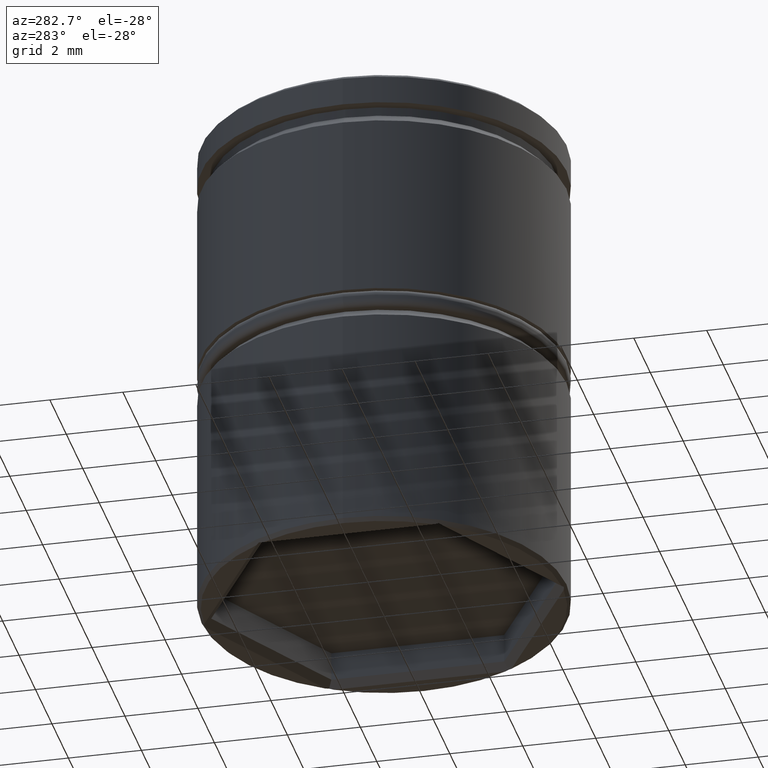
[diagram: clean part render]
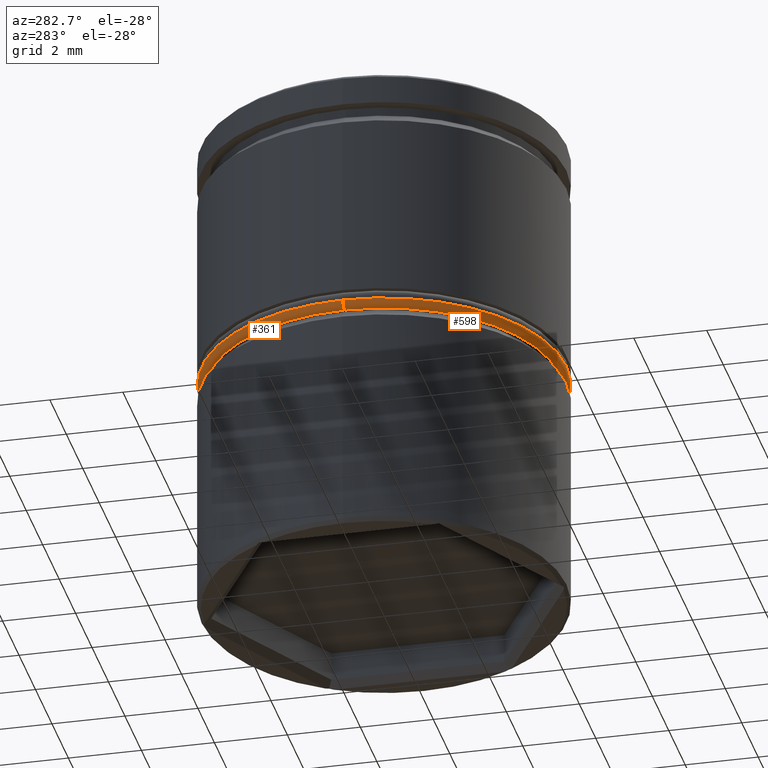
[diagram: same view with one multi-face feature highlighted, each face labeled with its STEP entity id]
A machine part, auxiliary view. The highlighted faces form ONE feature: a constant-radius fillet chain: 2 tangent blend faces with common blend radius 0.2 mm. The faces share edges in the B-rep.
Their STEP definitions:
[1] entity #598 (Torus):
#38 = EDGE_LOOP ( 'NONE', ( #761, #168, #1112, #285 ) ) ;
#45 = CARTESIAN_POINT ( 'NONE',  ( -4.800000000000000711, 5.878304635907295197E-16, -6.800000000000000711 ) ) ;
#68 = AXIS2_PLACEMENT_3D ( 'NONE', #776, #1208, #1044 ) ;
#86 = CARTESIAN_POINT ( 'NONE',  ( 0.000000000000000000, 0.000000000000000000, -6.999999999999999112 ) ) ;
#143 = DIRECTION ( 'NONE',  ( 1.224646799147353207E-16, 1.000000000000000000, -0.000000000000000000 ) ) ;
#168 = ORIENTED_EDGE ( 'NONE', *, *, #763, .F. ) ;
#285 = ORIENTED_EDGE ( 'NONE', *, *, #1292, .F. ) ;
#297 = DIRECTION ( 'NONE',  ( -0.000000000000000000, -0.000000000000000000, -1.000000000000000000 ) ) ;
#300 = CARTESIAN_POINT ( 'NONE',  ( 0.000000000000000000, 0.000000000000000000, -6.800000000000000711 ) ) ;
#311 = CIRCLE ( 'NONE', #1052, 5.000000000000000000 ) ;
#384 = VERTEX_POINT ( 'NONE', #1187 ) ;
#442 = DIRECTION ( 'NONE',  ( 0.000000000000000000, 0.000000000000000000, 1.000000000000000000 ) ) ;
#458 = VERTEX_POINT ( 'NONE', #1109 ) ;
#474 = CIRCLE ( 'NONE', #1231, 0.1999999999999996503 ) ;
#520 = DIRECTION ( 'NONE',  ( 1.000000000000000000, 0.000000000000000000, 0.000000000000000000 ) ) ;
#598 = ADVANCED_FACE ( 'NONE', ( #888 ), #939, .T. ) ;
#633 = EDGE_CURVE ( 'NONE', #384, #1314, #474, .T. ) ;
#701 = CARTESIAN_POINT ( 'NONE',  ( -5.000000000000000000, 6.123233995736766282E-16, -6.800000000000000711 ) ) ;
#732 = CIRCLE ( 'NONE', #1092, 4.800000000000000711 ) ;
#747 = DIRECTION ( 'NONE',  ( 1.000000000000000000, 0.000000000000000000, 0.000000000000000000 ) ) ;
#756 = DIRECTION ( 'NONE',  ( 0.000000000000000000, -1.000000000000000000, 0.000000000000000000 ) ) ;
#761 = ORIENTED_EDGE ( 'NONE', *, *, #822, .F. ) ;
#763 = EDGE_CURVE ( 'NONE', #384, #458, #732, .T. ) ;
#776 = CARTESIAN_POINT ( 'NONE',  ( 0.000000000000000000, 0.000000000000000000, -6.800000000000000711 ) ) ;
#822 = EDGE_CURVE ( 'NONE', #458, #1095, #834, .T. ) ;
#834 = CIRCLE ( 'NONE', #1325, 0.1999999999999996503 ) ;
#871 = DIRECTION ( 'NONE',  ( 0.000000000000000000, 0.000000000000000000, -1.000000000000000000 ) ) ;
#888 = FACE_OUTER_BOUND ( 'NONE', #38, .T. ) ;
#897 = DIRECTION ( 'NONE',  ( -1.000000000000000000, 1.224646799147353454E-16, 0.000000000000000000 ) ) ;
#939 = TOROIDAL_SURFACE ( 'NONE', #68, 4.800000000000000711, 0.2000000000000000111 ) ;
#1044 = DIRECTION ( 'NONE',  ( 1.000000000000000000, 0.000000000000000000, 0.000000000000000000 ) ) ;
#1052 = AXIS2_PLACEMENT_3D ( 'NONE', #300, #442, #747 ) ;
#1092 = AXIS2_PLACEMENT_3D ( 'NONE', #86, #297, #520 ) ;
#1095 = VERTEX_POINT ( 'NONE', #701 ) ;
#1109 = CARTESIAN_POINT ( 'NONE',  ( -4.800000000000000711, 6.000769315822031726E-16, -6.999999999999999112 ) ) ;
#1112 = ORIENTED_EDGE ( 'NONE', *, *, #633, .T. ) ;
#1157 = CARTESIAN_POINT ( 'NONE',  ( 5.000000000000000000, 0.000000000000000000, -6.800000000000000711 ) ) ;
#1187 = CARTESIAN_POINT ( 'NONE',  ( 4.800000000000000711, 0.000000000000000000, -6.999999999999999112 ) ) ;
#1208 = DIRECTION ( 'NONE',  ( 0.000000000000000000, 0.000000000000000000, 1.000000000000000000 ) ) ;
#1231 = AXIS2_PLACEMENT_3D ( 'NONE', #1282, #756, #871 ) ;
#1282 = CARTESIAN_POINT ( 'NONE',  ( 4.800000000000000711, 0.000000000000000000, -6.800000000000000711 ) ) ;
#1292 = EDGE_CURVE ( 'NONE', #1095, #1314, #311, .T. ) ;
#1314 = VERTEX_POINT ( 'NONE', #1157 ) ;
#1325 = AXIS2_PLACEMENT_3D ( 'NONE', #45, #143, #897 ) ;
[2] entity #361 (Torus):
#22 = AXIS2_PLACEMENT_3D ( 'NONE', #333, #844, #207 ) ;
#45 = CARTESIAN_POINT ( 'NONE',  ( -4.800000000000000711, 5.878304635907295197E-16, -6.800000000000000711 ) ) ;
#66 = TOROIDAL_SURFACE ( 'NONE', #183, 4.800000000000000711, 0.2000000000000000111 ) ;
#131 = DIRECTION ( 'NONE',  ( -0.000000000000000000, -0.000000000000000000, -1.000000000000000000 ) ) ;
#143 = DIRECTION ( 'NONE',  ( 1.224646799147353207E-16, 1.000000000000000000, -0.000000000000000000 ) ) ;
#158 = AXIS2_PLACEMENT_3D ( 'NONE', #1118, #131, #375 ) ;
#183 = AXIS2_PLACEMENT_3D ( 'NONE', #215, #1067, #626 ) ;
#192 = ORIENTED_EDGE ( 'NONE', *, *, #822, .T. ) ;
#207 = DIRECTION ( 'NONE',  ( 1.000000000000000000, 0.000000000000000000, 0.000000000000000000 ) ) ;
#215 = CARTESIAN_POINT ( 'NONE',  ( 0.000000000000000000, 0.000000000000000000, -6.800000000000000711 ) ) ;
#333 = CARTESIAN_POINT ( 'NONE',  ( 0.000000000000000000, 0.000000000000000000, -6.800000000000000711 ) ) ;
#346 = ORIENTED_EDGE ( 'NONE', *, *, #352, .F. ) ;
#352 = EDGE_CURVE ( 'NONE', #1314, #1095, #1370, .T. ) ;
#361 = ADVANCED_FACE ( 'NONE', ( #743 ), #66, .T. ) ;
#375 = DIRECTION ( 'NONE',  ( 1.000000000000000000, 0.000000000000000000, 0.000000000000000000 ) ) ;
#384 = VERTEX_POINT ( 'NONE', #1187 ) ;
#458 = VERTEX_POINT ( 'NONE', #1109 ) ;
#474 = CIRCLE ( 'NONE', #1231, 0.1999999999999996503 ) ;
#626 = DIRECTION ( 'NONE',  ( 1.000000000000000000, 0.000000000000000000, 0.000000000000000000 ) ) ;
#633 = EDGE_CURVE ( 'NONE', #384, #1314, #474, .T. ) ;
#657 = ORIENTED_EDGE ( 'NONE', *, *, #658, .F. ) ;
#658 = EDGE_CURVE ( 'NONE', #458, #384, #1257, .T. ) ;
#680 = EDGE_LOOP ( 'NONE', ( #657, #192, #346, #1053 ) ) ;
#701 = CARTESIAN_POINT ( 'NONE',  ( -5.000000000000000000, 6.123233995736766282E-16, -6.800000000000000711 ) ) ;
#743 = FACE_OUTER_BOUND ( 'NONE', #680, .T. ) ;
#756 = DIRECTION ( 'NONE',  ( 0.000000000000000000, -1.000000000000000000, 0.000000000000000000 ) ) ;
#822 = EDGE_CURVE ( 'NONE', #458, #1095, #834, .T. ) ;
#834 = CIRCLE ( 'NONE', #1325, 0.1999999999999996503 ) ;
#844 = DIRECTION ( 'NONE',  ( 0.000000000000000000, 0.000000000000000000, 1.000000000000000000 ) ) ;
#871 = DIRECTION ( 'NONE',  ( 0.000000000000000000, 0.000000000000000000, -1.000000000000000000 ) ) ;
#897 = DIRECTION ( 'NONE',  ( -1.000000000000000000, 1.224646799147353454E-16, 0.000000000000000000 ) ) ;
#1053 = ORIENTED_EDGE ( 'NONE', *, *, #633, .F. ) ;
#1067 = DIRECTION ( 'NONE',  ( 0.000000000000000000, 0.000000000000000000, 1.000000000000000000 ) ) ;
#1095 = VERTEX_POINT ( 'NONE', #701 ) ;
#1109 = CARTESIAN_POINT ( 'NONE',  ( -4.800000000000000711, 6.000769315822031726E-16, -6.999999999999999112 ) ) ;
#1118 = CARTESIAN_POINT ( 'NONE',  ( 0.000000000000000000, 0.000000000000000000, -6.999999999999999112 ) ) ;
#1157 = CARTESIAN_POINT ( 'NONE',  ( 5.000000000000000000, 0.000000000000000000, -6.800000000000000711 ) ) ;
#1187 = CARTESIAN_POINT ( 'NONE',  ( 4.800000000000000711, 0.000000000000000000, -6.999999999999999112 ) ) ;
#1231 = AXIS2_PLACEMENT_3D ( 'NONE', #1282, #756, #871 ) ;
#1257 = CIRCLE ( 'NONE', #158, 4.800000000000000711 ) ;
#1282 = CARTESIAN_POINT ( 'NONE',  ( 4.800000000000000711, 0.000000000000000000, -6.800000000000000711 ) ) ;
#1314 = VERTEX_POINT ( 'NONE', #1157 ) ;
#1325 = AXIS2_PLACEMENT_3D ( 'NONE', #45, #143, #897 ) ;
#1370 = CIRCLE ( 'NONE', #22, 5.000000000000000000 ) ;